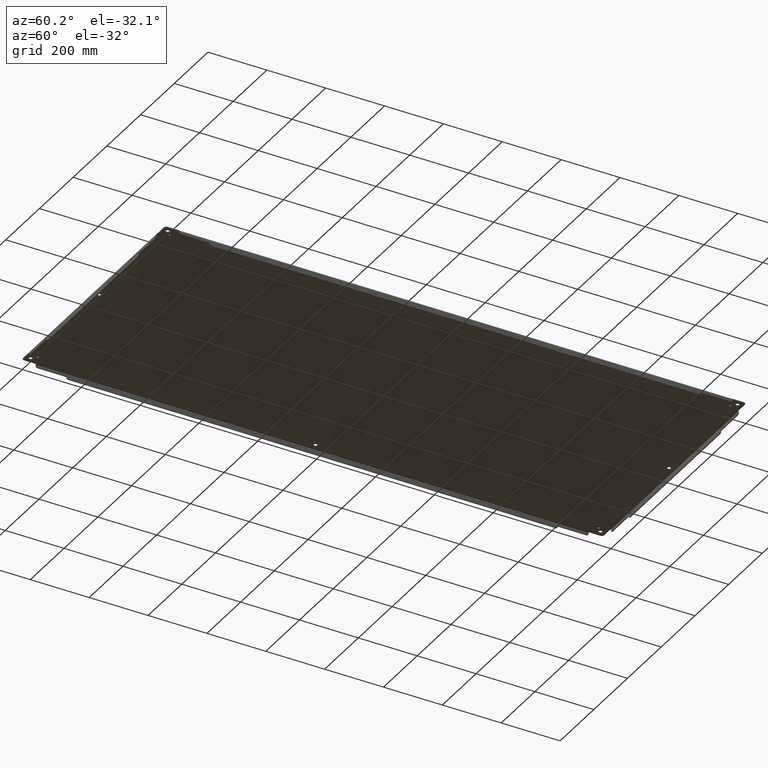
[diagram: clean part render]
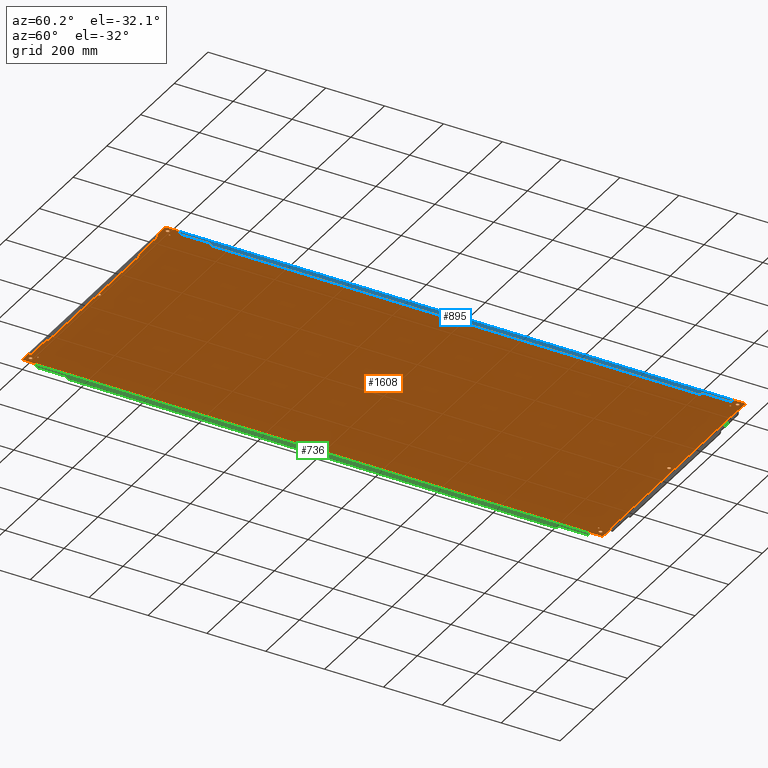
[diagram: same view with three faces highlighted in distinct colors, each labeled with its STEP entity id]
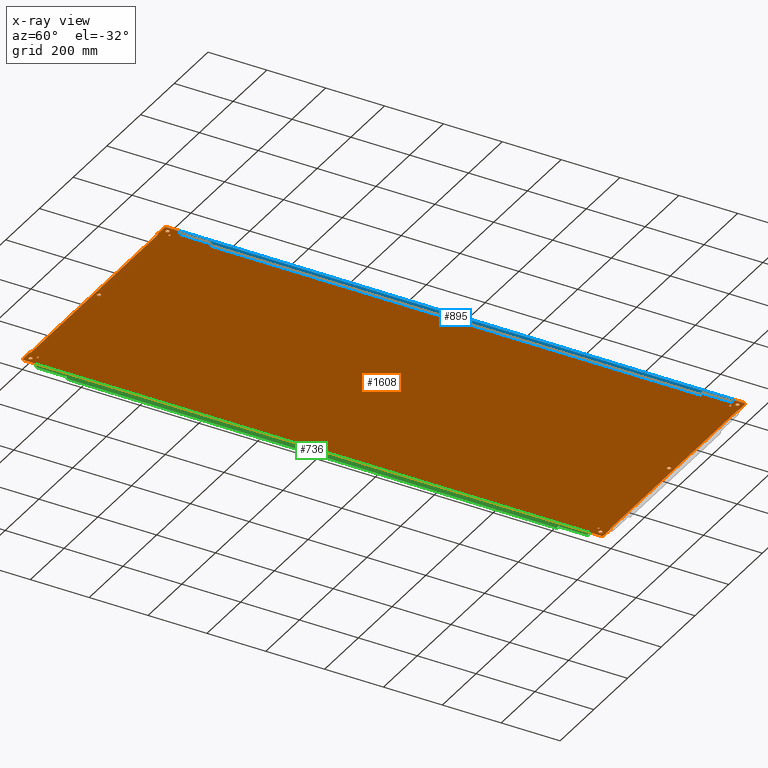
[diagram: x-ray of the same camera — body ghosted, the three highlighted faces saturated]
A machine part, auxiliary view with three faces highlighted in distinct colors.
The next image is the same camera in x-ray (body ghosted, the three faces saturated) — at least one of them is partly hidden behind the body in this view.
Their STEP definitions:

[orange] entity #1608 — the highlighted planar face has unit normal (0, 0, 1).
#8 = CARTESIAN_POINT ( 'NONE',  ( 16.60675000000000168, 36.98434999999999917, -0.1250000000000000000 ) ) ;
#25 = DIRECTION ( 'NONE',  ( 0.9848077530112269162, 0.1736481776724940196, 0.0000000000000000000 ) ) ;
#29 = EDGE_CURVE ( 'NONE', #1825, #1825, #2451, .T. ) ;
#33 = CARTESIAN_POINT ( 'NONE',  ( -15.38128156646000022, -37.50628156645999667, -0.1250000000000000000 ) ) ;
#36 = VECTOR ( 'NONE', #1763, 39.37007874015748143 ) ;
#38 = CARTESIAN_POINT ( 'NONE',  ( 14.85186739211355089, 38.73174999999984180, -0.1250000000000013323 ) ) ;
#43 = EDGE_CURVE ( 'NONE', #2154, #2154, #605, .T. ) ;
#45 = LINE ( 'NONE', #3654, #1771 ) ;
#64 = CARTESIAN_POINT ( 'NONE',  ( -15.38128156646000022, 37.50628156645999667, -0.1250000000000000000 ) ) ;
#70 = EDGE_LOOP ( 'NONE', ( #2906 ) ) ;
#73 = CIRCLE ( 'NONE', #3596, 0.2500000000000000000 ) ;
#84 = DIRECTION ( 'NONE',  ( 0.0000000000000000000, 0.0000000000000000000, 1.000000000000000000 ) ) ;
#85 = VERTEX_POINT ( 'NONE', #2453 ) ;
#93 = ORIENTED_EDGE ( 'NONE', *, *, #548, .T. ) ;
#108 = CARTESIAN_POINT ( 'NONE',  ( 16.00000000000000000, -38.12500000000000000, -0.1250000000000000000 ) ) ;
#134 = CIRCLE ( 'NONE', #1157, 0.2500000000000008882 ) ;
#161 = LINE ( 'NONE', #824, #1418 ) ;
#162 = ORIENTED_EDGE ( 'NONE', *, *, #2403, .F. ) ;
#166 = CARTESIAN_POINT ( 'NONE',  ( -15.74999999999999822, -38.12500000000000000, -0.1250000000000000000 ) ) ;
#169 = CARTESIAN_POINT ( 'NONE',  ( -16.00000000000000000, -38.12500000000000000, -0.1250000000000000000 ) ) ;
#188 = FACE_BOUND ( 'NONE', #1798, .T. ) ;
#200 = CARTESIAN_POINT ( 'NONE',  ( 0.0000000000000000000, 38.84375000000000000, -0.1250000000000000000 ) ) ;
#202 = ORIENTED_EDGE ( 'NONE', *, *, #3723, .F. ) ;
#204 = DIRECTION ( 'NONE',  ( 4.857895099745835558E-11, -1.000000000000000000, 8.820200600097185909E-13 ) ) ;
#234 = ORIENTED_EDGE ( 'NONE', *, *, #3295, .F. ) ;
#244 = EDGE_CURVE ( 'NONE', #2776, #2776, #134, .T. ) ;
#245 = AXIS2_PLACEMENT_3D ( 'NONE', #169, #3714, #4124 ) ;
#247 = ORIENTED_EDGE ( 'NONE', *, *, #2992, .F. ) ;
#248 = CARTESIAN_POINT ( 'NONE',  ( 0.0000000000000000000, -38.84375000000000000, -0.1250000000000000000 ) ) ;
#251 = FACE_BOUND ( 'NONE', #1756, .T. ) ;
#265 = VERTEX_POINT ( 'NONE', #3136 ) ;
#267 = EDGE_CURVE ( 'NONE', #2439, #3950, #501, .T. ) ;
#268 = FACE_BOUND ( 'NONE', #3937, .T. ) ;
#302 = EDGE_CURVE ( 'NONE', #646, #3529, #161, .T. ) ;
#319 = CARTESIAN_POINT ( 'NONE',  ( 0.0000000000000000000, 38.73174999999999812, -0.1250000000000000000 ) ) ;
#321 = LINE ( 'NONE', #1863, #1717 ) ;
#323 = ORIENTED_EDGE ( 'NONE', *, *, #1777, .F. ) ;
#325 = VECTOR ( 'NONE', #802, 39.37007874015748143 ) ;
#335 = VERTEX_POINT ( 'NONE', #3730 ) ;
#353 = DIRECTION ( 'NONE',  ( 0.0000000000000000000, 0.0000000000000000000, 1.000000000000000000 ) ) ;
#388 = VERTEX_POINT ( 'NONE', #1800 ) ;
#402 = DIRECTION ( 'NONE',  ( -1.000000000000000000, -0.0000000000000000000, 0.0000000000000000000 ) ) ;
#417 = LINE ( 'NONE', #1146, #3677 ) ;
#425 = LINE ( 'NONE', #1068, #3007 ) ;
#428 = ORIENTED_EDGE ( 'NONE', *, *, #543, .T. ) ;
#441 = AXIS2_PLACEMENT_3D ( 'NONE', #909, #2211, #1246 ) ;
#443 = DIRECTION ( 'NONE',  ( -4.857895099745835558E-11, 1.000000000000000000, 8.820200600097185909E-13 ) ) ;
#486 = DIRECTION ( 'NONE',  ( 0.0000000000000000000, -1.000000000000000000, -0.0000000000000000000 ) ) ;
#492 = CARTESIAN_POINT ( 'NONE',  ( -16.60674999999973522, 36.96874999999774047, -0.1249999999999945044 ) ) ;
#496 = VECTOR ( 'NONE', #3271, 39.37007874015748143 ) ;
#501 = LINE ( 'NONE', #1842, #325 ) ;
#505 = CARTESIAN_POINT ( 'NONE',  ( 16.25000000000000000, 38.12500000000000000, -0.1250000000000000000 ) ) ;
#518 = VERTEX_POINT ( 'NONE', #2187 ) ;
#534 = ORIENTED_EDGE ( 'NONE', *, *, #244, .T. ) ;
#541 = VERTEX_POINT ( 'NONE', #4135 ) ;
#543 = EDGE_CURVE ( 'NONE', #1484, #1484, #2669, .T. ) ;
#548 = EDGE_CURVE ( 'NONE', #1506, #1506, #3957, .T. ) ;
#549 = LINE ( 'NONE', #857, #2896 ) ;
#555 = DIRECTION ( 'NONE',  ( 0.0000000000000000000, 0.0000000000000000000, 1.000000000000000000 ) ) ;
#556 = CARTESIAN_POINT ( 'NONE',  ( 15.38128156646000022, 37.50628156645999667, -0.1250000000000000000 ) ) ;
#565 = CIRCLE ( 'NONE', #2141, 0.2500000000000008882 ) ;
#569 = LINE ( 'NONE', #1912, #3640 ) ;
#570 = EDGE_CURVE ( 'NONE', #1472, #1342, #321, .T. ) ;
#578 = DIRECTION ( 'NONE',  ( 0.0000000000000000000, 0.0000000000000000000, 1.000000000000000000 ) ) ;
#584 = ORIENTED_EDGE ( 'NONE', *, *, #2239, .T. ) ;
#586 = EDGE_CURVE ( 'NONE', #2797, #821, #1225, .T. ) ;
#593 = DIRECTION ( 'NONE',  ( 0.0000000000000000000, 0.0000000000000000000, 1.000000000000000000 ) ) ;
#595 = ORIENTED_EDGE ( 'NONE', *, *, #570, .F. ) ;
#600 = EDGE_CURVE ( 'NONE', #2767, #1600, #3848, .T. ) ;
#605 = CIRCLE ( 'NONE', #2780, 0.1404999999999992366 ) ;
#611 = ORIENTED_EDGE ( 'NONE', *, *, #3661, .F. ) ;
#621 = CARTESIAN_POINT ( 'NONE',  ( 14.87909862184000254, 38.84375000000000000, -0.1250000000000000000 ) ) ;
#641 = DIRECTION ( 'NONE',  ( 1.000000000000000000, 0.0000000000000000000, 0.0000000000000000000 ) ) ;
#646 = VERTEX_POINT ( 'NONE', #3619 ) ;
#690 = DIRECTION ( 'NONE',  ( 0.0000000000000000000, 0.0000000000000000000, 1.000000000000000000 ) ) ;
#713 = CARTESIAN_POINT ( 'NONE',  ( 16.60675000000011181, -36.98434999999999917, -0.1250000000000039968 ) ) ;
#731 = DIRECTION ( 'NONE',  ( 0.0000000000000000000, 0.0000000000000000000, 1.000000000000000000 ) ) ;
#753 = EDGE_CURVE ( 'NONE', #2910, #961, #565, .T. ) ;
#775 = CARTESIAN_POINT ( 'NONE',  ( -16.60675000000000168, -36.98434999999999917, -0.1250000000000000000 ) ) ;
#784 = VECTOR ( 'NONE', #2100, 39.37007874015748143 ) ;
#790 = AXIS2_PLACEMENT_3D ( 'NONE', #2493, #1810, #1444 ) ;
#792 = ORIENTED_EDGE ( 'NONE', *, *, #3378, .F. ) ;
#802 = DIRECTION ( 'NONE',  ( 1.000000000000000000, 0.0000000000000000000, -0.0000000000000000000 ) ) ;
#821 = VERTEX_POINT ( 'NONE', #1179 ) ;
#824 = CARTESIAN_POINT ( 'NONE',  ( -16.60674999999985957, 36.97686739211354734, -0.1250000000000013878 ) ) ;
#827 = VERTEX_POINT ( 'NONE', #3370 ) ;
#832 = CARTESIAN_POINT ( 'NONE',  ( 16.60674999999973522, -36.96874999999774047, -0.1249999999999945044 ) ) ;
#839 = EDGE_CURVE ( 'NONE', #2346, #4206, #2768, .T. ) ;
#842 = VECTOR ( 'NONE', #25, 39.37007874015748143 ) ;
#846 = AXIS2_PLACEMENT_3D ( 'NONE', #937, #555, #2203 ) ;
#857 = CARTESIAN_POINT ( 'NONE',  ( -14.85934999999999917, 38.73174999999999812, -0.1250000000000000000 ) ) ;
#864 = EDGE_CURVE ( 'NONE', #2712, #3299, #1112, .T. ) ;
#876 = DIRECTION ( 'NONE',  ( -0.0000000000000000000, 1.000000000000000000, 0.0000000000000000000 ) ) ;
#878 = DIRECTION ( 'NONE',  ( 1.000000000000000000, 0.0000000000000000000, 0.0000000000000000000 ) ) ;
#888 = CARTESIAN_POINT ( 'NONE',  ( 16.71875000000000000, 0.0000000000000000000, -0.1250000000000000000 ) ) ;
#898 = CARTESIAN_POINT ( 'NONE',  ( 16.00000000000000000, 38.12500000000000000, -0.1250000000000000000 ) ) ;
#905 = AXIS2_PLACEMENT_3D ( 'NONE', #33, #690, #3898 ) ;
#907 = EDGE_LOOP ( 'NONE', ( #1729 ) ) ;
#909 = CARTESIAN_POINT ( 'NONE',  ( 0.0000000000000000000, 0.0000000000000000000, -0.1250000000000000000 ) ) ;
#922 = ORIENTED_EDGE ( 'NONE', *, *, #43, .T. ) ;
#923 = AXIS2_PLACEMENT_3D ( 'NONE', #934, #353, #1596 ) ;
#931 = DIRECTION ( 'NONE',  ( -0.1736481776725027903, 0.9848077530112254729, 0.0000000000000000000 ) ) ;
#934 = CARTESIAN_POINT ( 'NONE',  ( 15.38128156646000022, -37.50628156645999667, -0.1250000000000000000 ) ) ;
#935 = ORIENTED_EDGE ( 'NONE', *, *, #3839, .F. ) ;
#937 = CARTESIAN_POINT ( 'NONE',  ( 16.46875000000000000, -38.59375000000000000, -0.1250000000000000000 ) ) ;
#958 = VERTEX_POINT ( 'NONE', #3132 ) ;
#961 = VERTEX_POINT ( 'NONE', #1256 ) ;
#1001 = ORIENTED_EDGE ( 'NONE', *, *, #3430, .F. ) ;
#1004 = CARTESIAN_POINT ( 'NONE',  ( 0.0000000000000000000, -38.84375000000000000, -0.1250000000000000000 ) ) ;
#1015 = EDGE_CURVE ( 'NONE', #3299, #2346, #1980, .T. ) ;
#1018 = LINE ( 'NONE', #3649, #1325 ) ;
#1020 = ORIENTED_EDGE ( 'NONE', *, *, #2089, .F. ) ;
#1024 = CARTESIAN_POINT ( 'NONE',  ( 16.60675000000000168, 0.0000000000000000000, -0.1250000000000000000 ) ) ;
#1036 = CIRCLE ( 'NONE', #905, 0.1404999999999992366 ) ;
#1039 = AXIS2_PLACEMENT_3D ( 'NONE', #3180, #2859, #2580 ) ;
#1040 = CARTESIAN_POINT ( 'NONE',  ( -16.71874999999906919, 37.00409862184107368, -0.1250000000000002498 ) ) ;
#1050 = CARTESIAN_POINT ( 'NONE',  ( 0.0000000000000000000, -38.73174999999999812, -0.1250000000000000000 ) ) ;
#1062 = CARTESIAN_POINT ( 'NONE',  ( 0.0000000000000000000, 38.84375000000000000, -0.1250000000000000000 ) ) ;
#1068 = CARTESIAN_POINT ( 'NONE',  ( -14.87909862184000254, -38.84375000000000000, -0.1250000000000000000 ) ) ;
#1112 = CIRCLE ( 'NONE', #846, 0.2500000000000008882 ) ;
#1146 = CARTESIAN_POINT ( 'NONE',  ( -16.71875000000000000, 37.00409862184000076, -0.1250000000000000000 ) ) ;
#1157 = AXIS2_PLACEMENT_3D ( 'NONE', #3966, #731, #3600 ) ;
#1158 = DIRECTION ( 'NONE',  ( -0.9848077530112269162, 0.1736481776724940196, 0.0000000000000000000 ) ) ;
#1166 = CARTESIAN_POINT ( 'NONE',  ( 16.25000000000000000, 0.0000000000000000000, -0.1250000000000000000 ) ) ;
#1167 = FACE_BOUND ( 'NONE', #3543, .T. ) ;
#1179 = CARTESIAN_POINT ( 'NONE',  ( 14.87909862183992438, -38.84374999999957367, -0.1250000000000000000 ) ) ;
#1196 = ORIENTED_EDGE ( 'NONE', *, *, #2455, .F. ) ;
#1225 = LINE ( 'NONE', #1886, #3008 ) ;
#1228 = DIRECTION ( 'NONE',  ( 1.000000000000000000, 0.0000000000000000000, 0.0000000000000000000 ) ) ;
#1230 = PLANE ( 'NONE',  #441 ) ;
#1246 = DIRECTION ( 'NONE',  ( 1.000000000000000000, 0.0000000000000000000, -0.0000000000000000000 ) ) ;
#1255 = EDGE_CURVE ( 'NONE', #388, #2767, #569, .T. ) ;
#1256 = CARTESIAN_POINT ( 'NONE',  ( 16.46875000000000000, 38.84375000000000000, -0.1250000000000000000 ) ) ;
#1262 = VECTOR ( 'NONE', #3800, 39.37007874015748143 ) ;
#1267 = EDGE_CURVE ( 'NONE', #518, #541, #549, .T. ) ;
#1273 = EDGE_CURVE ( 'NONE', #3379, #3172, #2850, .T. ) ;
#1294 = LINE ( 'NONE', #888, #2474 ) ;
#1311 = DIRECTION ( 'NONE',  ( -1.000000000000000000, -4.939312336051744496E-11, 8.798998194803716157E-13 ) ) ;
#1318 = LINE ( 'NONE', #1024, #4211 ) ;
#1319 = DIRECTION ( 'NONE',  ( -1.000000000000000000, -0.0000000000000000000, 0.0000000000000000000 ) ) ;
#1325 = VECTOR ( 'NONE', #443, 39.37007874015748143 ) ;
#1338 = EDGE_CURVE ( 'NONE', #2082, #1472, #1883, .T. ) ;
#1342 = VERTEX_POINT ( 'NONE', #1040 ) ;
#1353 = AXIS2_PLACEMENT_3D ( 'NONE', #108, #84, #2954 ) ;
#1355 = DIRECTION ( 'NONE',  ( 1.000000000000000000, 0.0000000000000000000, 0.0000000000000000000 ) ) ;
#1376 = AXIS2_PLACEMENT_3D ( 'NONE', #2267, #2898, #641 ) ;
#1397 = CARTESIAN_POINT ( 'NONE',  ( 14.85934999999999917, -38.73174999999999812, -0.1250000000000000000 ) ) ;
#1418 = VECTOR ( 'NONE', #204, 39.37007874015748143 ) ;
#1420 = CARTESIAN_POINT ( 'NONE',  ( -16.60675000000000168, 0.0000000000000000000, -0.1250000000000000000 ) ) ;
#1428 = CARTESIAN_POINT ( 'NONE',  ( -16.71874999999958078, -37.00409862183992260, -0.1250000000000000000 ) ) ;
#1438 = ORIENTED_EDGE ( 'NONE', *, *, #2463, .F. ) ;
#1444 = DIRECTION ( 'NONE',  ( 1.000000000000000000, 0.0000000000000000000, 0.0000000000000000000 ) ) ;
#1446 = EDGE_LOOP ( 'NONE', ( #2969 ) ) ;
#1454 = CARTESIAN_POINT ( 'NONE',  ( 16.46875000000000000, 38.59375000000000000, -0.1250000000000000000 ) ) ;
#1462 = VERTEX_POINT ( 'NONE', #3755 ) ;
#1472 = VERTEX_POINT ( 'NONE', #4055 ) ;
#1484 = VERTEX_POINT ( 'NONE', #3391 ) ;
#1486 = FACE_BOUND ( 'NONE', #1545, .T. ) ;
#1500 = ORIENTED_EDGE ( 'NONE', *, *, #1273, .F. ) ;
#1502 = VECTOR ( 'NONE', #1311, 39.37007874015748143 ) ;
#1506 = VERTEX_POINT ( 'NONE', #3711 ) ;
#1539 = VECTOR ( 'NONE', #2452, 39.37007874015748143 ) ;
#1545 = EDGE_LOOP ( 'NONE', ( #2264 ) ) ;
#1547 = DIRECTION ( 'NONE',  ( -0.0000000000000000000, -1.000000000000000000, 0.0000000000000000000 ) ) ;
#1596 = DIRECTION ( 'NONE',  ( 1.000000000000000000, 0.0000000000000000000, 0.0000000000000000000 ) ) ;
#1600 = VERTEX_POINT ( 'NONE', #2844 ) ;
#1608 = ADVANCED_FACE ( 'NONE', ( #188, #3183, #1167, #3166, #1486, #4159, #2173, #3439, #251, #3121, #4140, #268, #2471 ), #1230, .F. ) ;
#1616 = DIRECTION ( 'NONE',  ( -0.0000000000000000000, 1.000000000000000000, 0.0000000000000000000 ) ) ;
#1659 = DIRECTION ( 'NONE',  ( -0.0000000000000000000, 1.000000000000000000, 0.0000000000000000000 ) ) ;
#1666 = LINE ( 'NONE', #621, #1988 ) ;
#1668 = VECTOR ( 'NONE', #3636, 39.37007874015748143 ) ;
#1716 = VECTOR ( 'NONE', #1319, 39.37007874015748143 ) ;
#1717 = VECTOR ( 'NONE', #1547, 39.37007874015748143 ) ;
#1720 = CARTESIAN_POINT ( 'NONE',  ( -14.84375000000000000, 38.73174999999999812, -0.1249999999999959338 ) ) ;
#1729 = ORIENTED_EDGE ( 'NONE', *, *, #29, .T. ) ;
#1751 = ORIENTED_EDGE ( 'NONE', *, *, #3241, .F. ) ;
#1756 = EDGE_LOOP ( 'NONE', ( #93 ) ) ;
#1760 = VERTEX_POINT ( 'NONE', #166 ) ;
#1763 = DIRECTION ( 'NONE',  ( -1.000000000000000000, -0.0000000000000000000, 0.0000000000000000000 ) ) ;
#1771 = VECTOR ( 'NONE', #402, 39.37007874015748143 ) ;
#1777 = EDGE_CURVE ( 'NONE', #541, #2082, #1819, .T. ) ;
#1785 = CARTESIAN_POINT ( 'NONE',  ( 14.84374999999775291, 38.73174999999971391, -0.1249999999999945044 ) ) ;
#1798 = EDGE_LOOP ( 'NONE', ( #3071 ) ) ;
#1800 = CARTESIAN_POINT ( 'NONE',  ( 16.60675000000000168, 36.96874999999999289, -0.1249999999999959338 ) ) ;
#1804 = VERTEX_POINT ( 'NONE', #505 ) ;
#1810 = DIRECTION ( 'NONE',  ( 0.0000000000000000000, 0.0000000000000000000, 1.000000000000000000 ) ) ;
#1819 = LINE ( 'NONE', #200, #784 ) ;
#1825 = VERTEX_POINT ( 'NONE', #2755 ) ;
#1842 = CARTESIAN_POINT ( 'NONE',  ( 0.0000000000000000000, -38.73174999999999812, -0.1250000000000000000 ) ) ;
#1863 = CARTESIAN_POINT ( 'NONE',  ( -16.71875000000000000, 0.0000000000000000000, -0.1250000000000000000 ) ) ;
#1870 = CARTESIAN_POINT ( 'NONE',  ( -16.60675000000000523, -36.96875000000000000, -0.1249999999999959338 ) ) ;
#1880 = EDGE_CURVE ( 'NONE', #827, #827, #3900, .T. ) ;
#1883 = CIRCLE ( 'NONE', #3504, 0.2500000000000008882 ) ;
#1886 = CARTESIAN_POINT ( 'NONE',  ( 14.85934999999999917, -38.73174999999999812, -0.1250000000000000000 ) ) ;
#1904 = DIRECTION ( 'NONE',  ( 0.1736481776725027903, -0.9848077530112254729, 0.0000000000000000000 ) ) ;
#1906 = DIRECTION ( 'NONE',  ( -0.1736481776725027903, -0.9848077530112254729, 0.0000000000000000000 ) ) ;
#1912 = CARTESIAN_POINT ( 'NONE',  ( 16.60675000000000168, 0.0000000000000000000, -0.1250000000000000000 ) ) ;
#1972 = CARTESIAN_POINT ( 'NONE',  ( 16.46875000000000000, -38.84375000000000000, -0.1250000000000000000 ) ) ;
#1977 = CARTESIAN_POINT ( 'NONE',  ( 14.85934999999999917, 38.73175000000010471, -0.1250000000000039690 ) ) ;
#1980 = LINE ( 'NONE', #3634, #3885 ) ;
#1983 = CARTESIAN_POINT ( 'NONE',  ( 16.71875000000000000, -38.59375000000000000, -0.1250000000000000000 ) ) ;
#1988 = VECTOR ( 'NONE', #1906, 39.37007874015748143 ) ;
#2061 = EDGE_CURVE ( 'NONE', #2448, #2448, #73, .T. ) ;
#2069 = EDGE_CURVE ( 'NONE', #3906, #388, #1318, .T. ) ;
#2078 = DIRECTION ( 'NONE',  ( -0.9848077530112269162, -0.1736481776724940196, 0.0000000000000000000 ) ) ;
#2082 = VERTEX_POINT ( 'NONE', #3291 ) ;
#2085 = CIRCLE ( 'NONE', #245, 0.2500000000000008882 ) ;
#2089 = EDGE_CURVE ( 'NONE', #3669, #518, #45, .T. ) ;
#2100 = DIRECTION ( 'NONE',  ( -1.000000000000000000, -0.0000000000000000000, 0.0000000000000000000 ) ) ;
#2124 = ORIENTED_EDGE ( 'NONE', *, *, #3223, .F. ) ;
#2128 = ORIENTED_EDGE ( 'NONE', *, *, #2653, .F. ) ;
#2136 = VECTOR ( 'NONE', #2078, 39.37007874015748143 ) ;
#2141 = AXIS2_PLACEMENT_3D ( 'NONE', #1454, #2440, #2483 ) ;
#2154 = VERTEX_POINT ( 'NONE', #2470 ) ;
#2173 = FACE_BOUND ( 'NONE', #907, .T. ) ;
#2177 = CARTESIAN_POINT ( 'NONE',  ( -16.71875000000000000, 0.0000000000000000000, -0.1250000000000000000 ) ) ;
#2187 = CARTESIAN_POINT ( 'NONE',  ( -14.85934999999999917, 38.73174999999999812, -0.1250000000000000000 ) ) ;
#2194 = LINE ( 'NONE', #2781, #1539 ) ;
#2200 = EDGE_LOOP ( 'NONE', ( #3775, #2873, #2304, #611, #3940, #3856, #3913, #1751, #2226, #1001, #3810, #2128, #792, #3859, #935, #1500, #2988, #1196, #2486, #3724, #1438, #595, #2816, #323, #2858, #1020, #234, #162, #247, #202, #2721, #2124 ) ) ;
#2203 = DIRECTION ( 'NONE',  ( 1.000000000000000000, 0.0000000000000000000, 0.0000000000000000000 ) ) ;
#2211 = DIRECTION ( 'NONE',  ( 0.0000000000000000000, 0.0000000000000000000, 1.000000000000000000 ) ) ;
#2224 = DIRECTION ( 'NONE',  ( 1.000000000000000000, 0.0000000000000000000, 0.0000000000000000000 ) ) ;
#2226 = ORIENTED_EDGE ( 'NONE', *, *, #586, .F. ) ;
#2239 = EDGE_CURVE ( 'NONE', #3733, #3733, #3394, .T. ) ;
#2249 = AXIS2_PLACEMENT_3D ( 'NONE', #898, #593, #878 ) ;
#2261 = LINE ( 'NONE', #1004, #3209 ) ;
#2264 = ORIENTED_EDGE ( 'NONE', *, *, #2061, .T. ) ;
#2267 = CARTESIAN_POINT ( 'NONE',  ( 0.0000000000000000000, -38.12500000000000000, -0.1250000000000000000 ) ) ;
#2284 = EDGE_CURVE ( 'NONE', #1804, #1804, #4077, .T. ) ;
#2295 = EDGE_LOOP ( 'NONE', ( #584 ) ) ;
#2304 = ORIENTED_EDGE ( 'NONE', *, *, #2069, .F. ) ;
#2317 = CARTESIAN_POINT ( 'NONE',  ( -16.46875000000000000, 38.59375000000000000, -0.1250000000000000000 ) ) ;
#2346 = VERTEX_POINT ( 'NONE', #2871 ) ;
#2365 = DIRECTION ( 'NONE',  ( 0.0000000000000000000, 0.0000000000000000000, 1.000000000000000000 ) ) ;
#2369 = DIRECTION ( 'NONE',  ( 0.1736481776725027903, 0.9848077530112254729, 0.0000000000000000000 ) ) ;
#2384 = LINE ( 'NONE', #1062, #36 ) ;
#2403 = EDGE_CURVE ( 'NONE', #3551, #3808, #2952, .T. ) ;
#2439 = VERTEX_POINT ( 'NONE', #2779 ) ;
#2440 = DIRECTION ( 'NONE',  ( 0.0000000000000000000, 0.0000000000000000000, 1.000000000000000000 ) ) ;
#2448 = VERTEX_POINT ( 'NONE', #3119 ) ;
#2451 = CIRCLE ( 'NONE', #1353, 0.2500000000000008882 ) ;
#2452 = DIRECTION ( 'NONE',  ( 0.0000000000000000000, -1.000000000000000000, -0.0000000000000000000 ) ) ;
#2453 = CARTESIAN_POINT ( 'NONE',  ( -14.87909862184107546, -38.84374999999906919, -0.1250000000000005829 ) ) ;
#2455 = EDGE_CURVE ( 'NONE', #2644, #265, #3328, .T. ) ;
#2457 = CARTESIAN_POINT ( 'NONE',  ( -16.00000000000000000, 0.0000000000000000000, -0.1250000000000000000 ) ) ;
#2463 = EDGE_CURVE ( 'NONE', #1342, #646, #417, .T. ) ;
#2470 = CARTESIAN_POINT ( 'NONE',  ( -15.24078156646000082, 37.50628156645999667, -0.1250000000000000000 ) ) ;
#2471 = FACE_OUTER_BOUND ( 'NONE', #2200, .T. ) ;
#2474 = VECTOR ( 'NONE', #1659, 39.37007874015748143 ) ;
#2483 = DIRECTION ( 'NONE',  ( 1.000000000000000000, 0.0000000000000000000, 0.0000000000000000000 ) ) ;
#2486 = ORIENTED_EDGE ( 'NONE', *, *, #3817, .F. ) ;
#2493 = CARTESIAN_POINT ( 'NONE',  ( -16.46875000000000000, -38.59375000000000000, -0.1250000000000000000 ) ) ;
#2521 = EDGE_LOOP ( 'NONE', ( #428 ) ) ;
#2580 = DIRECTION ( 'NONE',  ( 1.000000000000000000, 0.0000000000000000000, 0.0000000000000000000 ) ) ;
#2619 = CIRCLE ( 'NONE', #790, 0.2500000000000008882 ) ;
#2644 = VERTEX_POINT ( 'NONE', #1870 ) ;
#2653 = EDGE_CURVE ( 'NONE', #958, #2439, #3167, .T. ) ;
#2669 = CIRCLE ( 'NONE', #1376, 0.2500000000000000000 ) ;
#2710 = EDGE_CURVE ( 'NONE', #2799, #2799, #1036, .T. ) ;
#2712 = VERTEX_POINT ( 'NONE', #1972 ) ;
#2721 = ORIENTED_EDGE ( 'NONE', *, *, #753, .F. ) ;
#2729 = EDGE_LOOP ( 'NONE', ( #3719 ) ) ;
#2755 = CARTESIAN_POINT ( 'NONE',  ( 16.25000000000000000, -38.12500000000000000, -0.1250000000000000000 ) ) ;
#2756 = CIRCLE ( 'NONE', #923, 0.1404999999999992366 ) ;
#2767 = VERTEX_POINT ( 'NONE', #8 ) ;
#2768 = LINE ( 'NONE', #4066, #2942 ) ;
#2776 = VERTEX_POINT ( 'NONE', #1166 ) ;
#2779 = CARTESIAN_POINT ( 'NONE',  ( -14.84374999999775291, -38.73174999999971391, -0.1249999999999945044 ) ) ;
#2780 = AXIS2_PLACEMENT_3D ( 'NONE', #64, #2365, #3650 ) ;
#2781 = CARTESIAN_POINT ( 'NONE',  ( -16.60675000000000168, 0.0000000000000000000, -0.1250000000000000000 ) ) ;
#2797 = VERTEX_POINT ( 'NONE', #1397 ) ;
#2799 = VERTEX_POINT ( 'NONE', #3099 ) ;
#2816 = ORIENTED_EDGE ( 'NONE', *, *, #1338, .F. ) ;
#2844 = CARTESIAN_POINT ( 'NONE',  ( 16.71874999999958078, 37.00409862183992260, -0.1250000000000000000 ) ) ;
#2850 = LINE ( 'NONE', #2177, #1262 ) ;
#2858 = ORIENTED_EDGE ( 'NONE', *, *, #1267, .F. ) ;
#2859 = DIRECTION ( 'NONE',  ( 0.0000000000000000000, 0.0000000000000000000, 1.000000000000000000 ) ) ;
#2867 = VECTOR ( 'NONE', #3239, 39.37007874015748143 ) ;
#2871 = CARTESIAN_POINT ( 'NONE',  ( 16.71874999999907274, -37.00409862184107368, -0.1250000000000001665 ) ) ;
#2873 = ORIENTED_EDGE ( 'NONE', *, *, #1255, .F. ) ;
#2896 = VECTOR ( 'NONE', #931, 39.37007874015748143 ) ;
#2898 = DIRECTION ( 'NONE',  ( 0.0000000000000000000, 0.0000000000000000000, 1.000000000000000000 ) ) ;
#2906 = ORIENTED_EDGE ( 'NONE', *, *, #3824, .T. ) ;
#2910 = VERTEX_POINT ( 'NONE', #4139 ) ;
#2936 = VECTOR ( 'NONE', #486, 39.37007874015748143 ) ;
#2942 = VECTOR ( 'NONE', #1158, 39.37007874015748143 ) ;
#2952 = LINE ( 'NONE', #38, #1502 ) ;
#2954 = DIRECTION ( 'NONE',  ( 1.000000000000000000, 0.0000000000000000000, 0.0000000000000000000 ) ) ;
#2969 = ORIENTED_EDGE ( 'NONE', *, *, #2710, .T. ) ;
#2988 = ORIENTED_EDGE ( 'NONE', *, *, #3100, .F. ) ;
#2990 = CARTESIAN_POINT ( 'NONE',  ( -16.46875000000000000, -38.84375000000000000, -0.1250000000000000000 ) ) ;
#2992 = EDGE_CURVE ( 'NONE', #335, #3551, #1666, .T. ) ;
#3007 = VECTOR ( 'NONE', #2369, 39.37007874015748143 ) ;
#3008 = VECTOR ( 'NONE', #1904, 39.37007874015748143 ) ;
#3051 = CARTESIAN_POINT ( 'NONE',  ( -16.71875000000000000, -38.59375000000000000, -0.1250000000000000000 ) ) ;
#3062 = ORIENTED_EDGE ( 'NONE', *, *, #2284, .T. ) ;
#3071 = ORIENTED_EDGE ( 'NONE', *, *, #1880, .T. ) ;
#3099 = CARTESIAN_POINT ( 'NONE',  ( -15.24078156646000082, -37.50628156645999667, -0.1250000000000000000 ) ) ;
#3100 = EDGE_CURVE ( 'NONE', #265, #3379, #3962, .T. ) ;
#3119 = CARTESIAN_POINT ( 'NONE',  ( 0.2500000000000000000, 38.12500000000000000, -0.1250000000000000000 ) ) ;
#3121 = FACE_BOUND ( 'NONE', #3577, .T. ) ;
#3132 = CARTESIAN_POINT ( 'NONE',  ( -14.85934999999999917, -38.73175000000010471, -0.1250000000000039690 ) ) ;
#3136 = CARTESIAN_POINT ( 'NONE',  ( -16.60675000000000168, -36.98434999999999917, -0.1250000000000000000 ) ) ;
#3166 = FACE_BOUND ( 'NONE', #2295, .T. ) ;
#3167 = LINE ( 'NONE', #3815, #2867 ) ;
#3172 = VERTEX_POINT ( 'NONE', #3051 ) ;
#3180 = CARTESIAN_POINT ( 'NONE',  ( -16.00000000000000000, 38.12500000000000000, -0.1250000000000000000 ) ) ;
#3183 = FACE_BOUND ( 'NONE', #1446, .T. ) ;
#3209 = VECTOR ( 'NONE', #1228, 39.37007874015748143 ) ;
#3223 = EDGE_CURVE ( 'NONE', #1600, #2910, #1294, .T. ) ;
#3239 = DIRECTION ( 'NONE',  ( 1.000000000000000000, 4.939312336051744496E-11, 8.798998194803716157E-13 ) ) ;
#3241 = EDGE_CURVE ( 'NONE', #821, #2712, #3888, .T. ) ;
#3251 = DIRECTION ( 'NONE',  ( 1.000000000000000000, 0.0000000000000000000, 0.0000000000000000000 ) ) ;
#3271 = DIRECTION ( 'NONE',  ( 1.000000000000000000, 0.0000000000000000000, 0.0000000000000000000 ) ) ;
#3291 = CARTESIAN_POINT ( 'NONE',  ( -16.46875000000000000, 38.84375000000000000, -0.1250000000000000000 ) ) ;
#3292 = LINE ( 'NONE', #1050, #1668 ) ;
#3295 = EDGE_CURVE ( 'NONE', #3808, #3669, #4138, .T. ) ;
#3299 = VERTEX_POINT ( 'NONE', #1983 ) ;
#3306 = EDGE_CURVE ( 'NONE', #4082, #85, #2261, .T. ) ;
#3319 = CARTESIAN_POINT ( 'NONE',  ( 16.60675000000000168, 36.98434999999999917, -0.1250000000000000000 ) ) ;
#3328 = LINE ( 'NONE', #1420, #2936 ) ;
#3333 = CARTESIAN_POINT ( 'NONE',  ( 0.0000000000000000000, 38.12500000000000000, -0.1250000000000000000 ) ) ;
#3370 = CARTESIAN_POINT ( 'NONE',  ( 15.52178156645999962, 37.50628156645999667, -0.1250000000000000000 ) ) ;
#3378 = EDGE_CURVE ( 'NONE', #85, #958, #425, .T. ) ;
#3379 = VERTEX_POINT ( 'NONE', #1428 ) ;
#3391 = CARTESIAN_POINT ( 'NONE',  ( 0.2500000000000000000, -38.12500000000000000, -0.1250000000000000000 ) ) ;
#3394 = CIRCLE ( 'NONE', #3528, 0.2500000000000008882 ) ;
#3413 = CARTESIAN_POINT ( 'NONE',  ( -15.74999999999999822, 0.0000000000000000000, -0.1250000000000000000 ) ) ;
#3430 = EDGE_CURVE ( 'NONE', #3950, #2797, #3292, .T. ) ;
#3439 = FACE_BOUND ( 'NONE', #70, .T. ) ;
#3504 = AXIS2_PLACEMENT_3D ( 'NONE', #2317, #4183, #1355 ) ;
#3528 = AXIS2_PLACEMENT_3D ( 'NONE', #2457, #3996, #3742 ) ;
#3529 = VERTEX_POINT ( 'NONE', #492 ) ;
#3543 = EDGE_LOOP ( 'NONE', ( #534 ) ) ;
#3551 = VERTEX_POINT ( 'NONE', #1977 ) ;
#3563 = EDGE_CURVE ( 'NONE', #1462, #1462, #2756, .T. ) ;
#3577 = EDGE_LOOP ( 'NONE', ( #3062 ) ) ;
#3596 = AXIS2_PLACEMENT_3D ( 'NONE', #3333, #3887, #3251 ) ;
#3600 = DIRECTION ( 'NONE',  ( 1.000000000000000000, 0.0000000000000000000, 0.0000000000000000000 ) ) ;
#3614 = DIRECTION ( 'NONE',  ( -0.0000000000000000000, 1.000000000000000000, 0.0000000000000000000 ) ) ;
#3619 = CARTESIAN_POINT ( 'NONE',  ( -16.60675000000011181, 36.98434999999999917, -0.1250000000000039968 ) ) ;
#3634 = CARTESIAN_POINT ( 'NONE',  ( 16.71875000000000000, 0.0000000000000000000, -0.1250000000000000000 ) ) ;
#3636 = DIRECTION ( 'NONE',  ( 1.000000000000000000, 0.0000000000000000000, -0.0000000000000000000 ) ) ;
#3640 = VECTOR ( 'NONE', #876, 39.37007874015748143 ) ;
#3649 = CARTESIAN_POINT ( 'NONE',  ( 16.60674999999985957, -36.97686739211354734, -0.1250000000000013878 ) ) ;
#3650 = DIRECTION ( 'NONE',  ( 1.000000000000000000, 0.0000000000000000000, 0.0000000000000000000 ) ) ;
#3654 = CARTESIAN_POINT ( 'NONE',  ( 0.0000000000000000000, 38.73174999999999812, -0.1250000000000000000 ) ) ;
#3661 = EDGE_CURVE ( 'NONE', #4206, #3906, #1018, .T. ) ;
#3669 = VERTEX_POINT ( 'NONE', #1720 ) ;
#3677 = VECTOR ( 'NONE', #3990, 39.37007874015748143 ) ;
#3711 = CARTESIAN_POINT ( 'NONE',  ( -15.74999999999999822, 38.12500000000000000, -0.1250000000000000000 ) ) ;
#3714 = DIRECTION ( 'NONE',  ( 0.0000000000000000000, 0.0000000000000000000, 1.000000000000000000 ) ) ;
#3719 = ORIENTED_EDGE ( 'NONE', *, *, #3563, .T. ) ;
#3723 = EDGE_CURVE ( 'NONE', #961, #335, #2384, .T. ) ;
#3724 = ORIENTED_EDGE ( 'NONE', *, *, #302, .F. ) ;
#3730 = CARTESIAN_POINT ( 'NONE',  ( 14.87909862184107546, 38.84374999999906919, -0.1250000000000005829 ) ) ;
#3733 = VERTEX_POINT ( 'NONE', #3413 ) ;
#3742 = DIRECTION ( 'NONE',  ( 1.000000000000000000, 0.0000000000000000000, 0.0000000000000000000 ) ) ;
#3755 = CARTESIAN_POINT ( 'NONE',  ( 15.52178156645999962, -37.50628156645999667, -0.1250000000000000000 ) ) ;
#3775 = ORIENTED_EDGE ( 'NONE', *, *, #600, .F. ) ;
#3800 = DIRECTION ( 'NONE',  ( -0.0000000000000000000, -1.000000000000000000, 0.0000000000000000000 ) ) ;
#3808 = VERTEX_POINT ( 'NONE', #1785 ) ;
#3810 = ORIENTED_EDGE ( 'NONE', *, *, #267, .F. ) ;
#3815 = CARTESIAN_POINT ( 'NONE',  ( -14.85186739211355089, -38.73174999999984180, -0.1250000000000013323 ) ) ;
#3817 = EDGE_CURVE ( 'NONE', #3529, #2644, #2194, .T. ) ;
#3824 = EDGE_CURVE ( 'NONE', #1760, #1760, #2085, .T. ) ;
#3839 = EDGE_CURVE ( 'NONE', #3172, #4082, #2619, .T. ) ;
#3848 = LINE ( 'NONE', #3319, #842 ) ;
#3856 = ORIENTED_EDGE ( 'NONE', *, *, #1015, .F. ) ;
#3859 = ORIENTED_EDGE ( 'NONE', *, *, #3306, .F. ) ;
#3874 = CARTESIAN_POINT ( 'NONE',  ( 14.84375000000000000, -38.73174999999999812, -0.1249999999999959338 ) ) ;
#3885 = VECTOR ( 'NONE', #1616, 39.37007874015748143 ) ;
#3887 = DIRECTION ( 'NONE',  ( 0.0000000000000000000, 0.0000000000000000000, 1.000000000000000000 ) ) ;
#3888 = LINE ( 'NONE', #248, #496 ) ;
#3898 = DIRECTION ( 'NONE',  ( 1.000000000000000000, 0.0000000000000000000, 0.0000000000000000000 ) ) ;
#3900 = CIRCLE ( 'NONE', #4112, 0.1404999999999992366 ) ;
#3906 = VERTEX_POINT ( 'NONE', #832 ) ;
#3913 = ORIENTED_EDGE ( 'NONE', *, *, #864, .F. ) ;
#3937 = EDGE_LOOP ( 'NONE', ( #922 ) ) ;
#3940 = ORIENTED_EDGE ( 'NONE', *, *, #839, .F. ) ;
#3950 = VERTEX_POINT ( 'NONE', #3874 ) ;
#3957 = CIRCLE ( 'NONE', #1039, 0.2500000000000008882 ) ;
#3962 = LINE ( 'NONE', #775, #2136 ) ;
#3966 = CARTESIAN_POINT ( 'NONE',  ( 16.00000000000000000, 0.0000000000000000000, -0.1250000000000000000 ) ) ;
#3990 = DIRECTION ( 'NONE',  ( 0.9848077530112269162, -0.1736481776724940196, 0.0000000000000000000 ) ) ;
#3996 = DIRECTION ( 'NONE',  ( 0.0000000000000000000, 0.0000000000000000000, 1.000000000000000000 ) ) ;
#4055 = CARTESIAN_POINT ( 'NONE',  ( -16.71875000000000000, 38.59375000000000000, -0.1250000000000000000 ) ) ;
#4066 = CARTESIAN_POINT ( 'NONE',  ( 16.71875000000000000, -37.00409862184000076, -0.1250000000000000000 ) ) ;
#4077 = CIRCLE ( 'NONE', #2249, 0.2500000000000008882 ) ;
#4082 = VERTEX_POINT ( 'NONE', #2990 ) ;
#4112 = AXIS2_PLACEMENT_3D ( 'NONE', #556, #578, #2224 ) ;
#4124 = DIRECTION ( 'NONE',  ( 1.000000000000000000, 0.0000000000000000000, 0.0000000000000000000 ) ) ;
#4135 = CARTESIAN_POINT ( 'NONE',  ( -14.87909862183992438, 38.84374999999957367, -0.1250000000000000000 ) ) ;
#4138 = LINE ( 'NONE', #319, #1716 ) ;
#4139 = CARTESIAN_POINT ( 'NONE',  ( 16.71875000000000000, 38.59375000000000000, -0.1250000000000000000 ) ) ;
#4140 = FACE_BOUND ( 'NONE', #2729, .T. ) ;
#4159 = FACE_BOUND ( 'NONE', #2521, .T. ) ;
#4183 = DIRECTION ( 'NONE',  ( 0.0000000000000000000, 0.0000000000000000000, 1.000000000000000000 ) ) ;
#4206 = VERTEX_POINT ( 'NONE', #713 ) ;
#4211 = VECTOR ( 'NONE', #3614, 39.37007874015748143 ) ;

[blue] entity #895 — the highlighted planar face has unit normal (1, 0, 0).
#40 = LINE ( 'NONE', #1336, #2849 ) ;
#54 = EDGE_CURVE ( 'NONE', #779, #2185, #40, .T. ) ;
#154 = VERTEX_POINT ( 'NONE', #1104 ) ;
#183 = CARTESIAN_POINT ( 'NONE',  ( 16.84374999999997868, -36.96874999999941025, -0.3125000000000000000 ) ) ;
#256 = VERTEX_POINT ( 'NONE', #410 ) ;
#264 = CARTESIAN_POINT ( 'NONE',  ( 16.84375000000000355, -32.59375000000000000, -0.8750000000000000000 ) ) ;
#404 = VERTEX_POINT ( 'NONE', #183 ) ;
#407 = VECTOR ( 'NONE', #3022, 39.37007874015748143 ) ;
#410 = CARTESIAN_POINT ( 'NONE',  ( 16.84375000000000000, 36.96875000000000000, -0.2369999999999999885 ) ) ;
#422 = EDGE_CURVE ( 'NONE', #2411, #3190, #1118, .T. ) ;
#431 = CARTESIAN_POINT ( 'NONE',  ( 16.84375000000000355, -36.71874999999942446, -0.5625000000000000000 ) ) ;
#452 = EDGE_CURVE ( 'NONE', #3883, #550, #3116, .T. ) ;
#476 = DIRECTION ( 'NONE',  ( 1.000000000000000000, 0.0000000000000000000, 0.0000000000000000000 ) ) ;
#495 = LINE ( 'NONE', #1795, #2672 ) ;
#532 = LINE ( 'NONE', #1109, #407 ) ;
#550 = VERTEX_POINT ( 'NONE', #264 ) ;
#682 = ORIENTED_EDGE ( 'NONE', *, *, #757, .T. ) ;
#757 = EDGE_CURVE ( 'NONE', #3273, #154, #3546, .T. ) ;
#779 = VERTEX_POINT ( 'NONE', #431 ) ;
#828 = EDGE_CURVE ( 'NONE', #3040, #256, #495, .T. ) ;
#894 = DIRECTION ( 'NONE',  ( 0.0000000000000000000, 0.0000000000000000000, -1.000000000000000000 ) ) ;
#895 = ADVANCED_FACE ( 'NONE', ( #1238 ), #3212, .T. ) ;
#955 = CARTESIAN_POINT ( 'NONE',  ( 16.84375000000000000, -38.84375000000000000, 0.0000000000000000000 ) ) ;
#970 = AXIS2_PLACEMENT_3D ( 'NONE', #955, #1202, #2500 ) ;
#984 = CIRCLE ( 'NONE', #3359, 0.2499999999999986955 ) ;
#1104 = CARTESIAN_POINT ( 'NONE',  ( 16.84375000000000355, 36.96875000000000000, -0.3125000000000000000 ) ) ;
#1109 = CARTESIAN_POINT ( 'NONE',  ( 16.84375000000000000, -38.84375000000000000, -0.5625000000000000000 ) ) ;
#1113 = CARTESIAN_POINT ( 'NONE',  ( 16.84375000000000355, 36.71875000000000000, -0.3125000000000000000 ) ) ;
#1118 = LINE ( 'NONE', #2423, #2572 ) ;
#1127 = LINE ( 'NONE', #4057, #3564 ) ;
#1202 = DIRECTION ( 'NONE',  ( 1.000000000000000000, 0.0000000000000000000, 0.0000000000000000000 ) ) ;
#1223 = ORIENTED_EDGE ( 'NONE', *, *, #54, .T. ) ;
#1238 = FACE_OUTER_BOUND ( 'NONE', #3492, .T. ) ;
#1248 = LINE ( 'NONE', #1306, #2144 ) ;
#1276 = AXIS2_PLACEMENT_3D ( 'NONE', #1277, #3809, #2245 ) ;
#1277 = CARTESIAN_POINT ( 'NONE',  ( 16.84375000000000355, -32.59375000000000000, -0.6250000000000000000 ) ) ;
#1306 = CARTESIAN_POINT ( 'NONE',  ( 16.84375000000000000, -32.84375000000000000, -0.7187500000000000000 ) ) ;
#1336 = CARTESIAN_POINT ( 'NONE',  ( 16.84375000000000000, -38.84375000000000000, -0.5625000000000000000 ) ) ;
#1529 = EDGE_CURVE ( 'NONE', #154, #256, #1846, .T. ) ;
#1548 = ORIENTED_EDGE ( 'NONE', *, *, #1529, .T. ) ;
#1569 = EDGE_CURVE ( 'NONE', #3129, #3190, #4182, .T. ) ;
#1674 = VECTOR ( 'NONE', #3101, 39.37007874015748143 ) ;
#1795 = CARTESIAN_POINT ( 'NONE',  ( 16.84375000000000355, 36.96875000000000000, -0.2369999999999999885 ) ) ;
#1828 = DIRECTION ( 'NONE',  ( 1.000000000000000000, 0.0000000000000000000, 0.0000000000000000000 ) ) ;
#1833 = ORIENTED_EDGE ( 'NONE', *, *, #4031, .T. ) ;
#1846 = LINE ( 'NONE', #2546, #1674 ) ;
#1862 = AXIS2_PLACEMENT_3D ( 'NONE', #1113, #476, #3701 ) ;
#1895 = ORIENTED_EDGE ( 'NONE', *, *, #1933, .T. ) ;
#1933 = EDGE_CURVE ( 'NONE', #404, #779, #984, .T. ) ;
#2144 = VECTOR ( 'NONE', #2548, 39.37007874015748143 ) ;
#2185 = VERTEX_POINT ( 'NONE', #3087 ) ;
#2216 = EDGE_CURVE ( 'NONE', #2411, #3273, #532, .T. ) ;
#2245 = DIRECTION ( 'NONE',  ( 0.0000000000000000000, 0.0000000000000000000, -1.000000000000000000 ) ) ;
#2355 = CARTESIAN_POINT ( 'NONE',  ( 16.84375000000000355, 32.59375000000000000, -0.8750000000000001110 ) ) ;
#2411 = VERTEX_POINT ( 'NONE', #3608 ) ;
#2423 = CARTESIAN_POINT ( 'NONE',  ( 16.84375000000000000, 32.84375000000000000, -0.7187500000000000000 ) ) ;
#2500 = DIRECTION ( 'NONE',  ( 0.0000000000000000000, 0.0000000000000000000, -1.000000000000000000 ) ) ;
#2503 = ORIENTED_EDGE ( 'NONE', *, *, #3860, .T. ) ;
#2539 = DIRECTION ( 'NONE',  ( 1.000000000000000000, -1.136960442324000035E-13, 0.0000000000000000000 ) ) ;
#2546 = CARTESIAN_POINT ( 'NONE',  ( 16.84375000000000000, 36.96875000000000000, 0.0000000000000000000 ) ) ;
#2548 = DIRECTION ( 'NONE',  ( -0.0000000000000000000, 0.0000000000000000000, -1.000000000000000000 ) ) ;
#2559 = DIRECTION ( 'NONE',  ( 1.136448765364339494E-13, 1.000000000000000000, 0.0000000000000000000 ) ) ;
#2572 = VECTOR ( 'NONE', #3553, 39.37007874015748143 ) ;
#2672 = VECTOR ( 'NONE', #3090, 39.37007874015748143 ) ;
#2709 = ORIENTED_EDGE ( 'NONE', *, *, #3796, .T. ) ;
#2745 = ORIENTED_EDGE ( 'NONE', *, *, #1569, .T. ) ;
#2760 = CARTESIAN_POINT ( 'NONE',  ( 16.84375000000000355, -32.84375000000000000, -0.6250000000000000000 ) ) ;
#2849 = VECTOR ( 'NONE', #3928, 39.37007874015748143 ) ;
#2883 = CARTESIAN_POINT ( 'NONE',  ( 16.84375000000000000, -36.96875000000000000, -0.2369999999999999885 ) ) ;
#2918 = ORIENTED_EDGE ( 'NONE', *, *, #452, .T. ) ;
#3022 = DIRECTION ( 'NONE',  ( -0.0000000000000000000, 1.000000000000000000, 0.0000000000000000000 ) ) ;
#3031 = ORIENTED_EDGE ( 'NONE', *, *, #828, .F. ) ;
#3040 = VERTEX_POINT ( 'NONE', #2883 ) ;
#3082 = CARTESIAN_POINT ( 'NONE',  ( 16.84375000000000000, -38.84375000000000000, -0.8750000000000000000 ) ) ;
#3087 = CARTESIAN_POINT ( 'NONE',  ( 16.84374999999999645, -32.84374999999999289, -0.5625000000000000000 ) ) ;
#3090 = DIRECTION ( 'NONE',  ( -0.0000000000000000000, 1.000000000000000000, -0.0000000000000000000 ) ) ;
#3101 = DIRECTION ( 'NONE',  ( -0.0000000000000000000, -0.0000000000000000000, 1.000000000000000000 ) ) ;
#3116 = CIRCLE ( 'NONE', #1276, 0.2500000000000000555 ) ;
#3124 = LINE ( 'NONE', #3082, #4169 ) ;
#3129 = VERTEX_POINT ( 'NONE', #2355 ) ;
#3144 = DIRECTION ( 'NONE',  ( -0.0000000000000000000, 1.000000000000000000, 0.0000000000000000000 ) ) ;
#3190 = VERTEX_POINT ( 'NONE', #3705 ) ;
#3212 = PLANE ( 'NONE',  #970 ) ;
#3267 = ORIENTED_EDGE ( 'NONE', *, *, #2216, .T. ) ;
#3273 = VERTEX_POINT ( 'NONE', #3912 ) ;
#3298 = AXIS2_PLACEMENT_3D ( 'NONE', #3779, #1828, #3813 ) ;
#3359 = AXIS2_PLACEMENT_3D ( 'NONE', #3788, #2539, #2559 ) ;
#3492 = EDGE_LOOP ( 'NONE', ( #2709, #1895, #1223, #1833, #2918, #2503, #2745, #3617, #3267, #682, #1548, #3031 ) ) ;
#3546 = CIRCLE ( 'NONE', #1862, 0.2500000000000000000 ) ;
#3553 = DIRECTION ( 'NONE',  ( -0.0000000000000000000, 0.0000000000000000000, -1.000000000000000000 ) ) ;
#3564 = VECTOR ( 'NONE', #894, 39.37007874015748143 ) ;
#3608 = CARTESIAN_POINT ( 'NONE',  ( 16.84374999999999645, 32.84375000000000711, -0.5625000000000000000 ) ) ;
#3617 = ORIENTED_EDGE ( 'NONE', *, *, #422, .F. ) ;
#3701 = DIRECTION ( 'NONE',  ( 0.0000000000000000000, 0.0000000000000000000, -1.000000000000000000 ) ) ;
#3705 = CARTESIAN_POINT ( 'NONE',  ( 16.84375000000000355, 32.84375000000000000, -0.6250000000000000000 ) ) ;
#3779 = CARTESIAN_POINT ( 'NONE',  ( 16.84375000000000355, 32.59375000000000000, -0.6250000000000000000 ) ) ;
#3788 = CARTESIAN_POINT ( 'NONE',  ( 16.84375000000000355, -36.71874999999882760, -0.3125000000000000000 ) ) ;
#3796 = EDGE_CURVE ( 'NONE', #3040, #404, #1127, .T. ) ;
#3809 = DIRECTION ( 'NONE',  ( 1.000000000000000000, 0.0000000000000000000, 0.0000000000000000000 ) ) ;
#3813 = DIRECTION ( 'NONE',  ( 0.0000000000000000000, 0.0000000000000000000, -1.000000000000000000 ) ) ;
#3860 = EDGE_CURVE ( 'NONE', #550, #3129, #3124, .T. ) ;
#3883 = VERTEX_POINT ( 'NONE', #2760 ) ;
#3912 = CARTESIAN_POINT ( 'NONE',  ( 16.84375000000000355, 36.71875000000000000, -0.5625000000000000000 ) ) ;
#3928 = DIRECTION ( 'NONE',  ( -0.0000000000000000000, 1.000000000000000000, 0.0000000000000000000 ) ) ;
#4031 = EDGE_CURVE ( 'NONE', #2185, #3883, #1248, .T. ) ;
#4057 = CARTESIAN_POINT ( 'NONE',  ( 16.84375000000000000, -36.96875000000000000, 0.0000000000000000000 ) ) ;
#4169 = VECTOR ( 'NONE', #3144, 39.37007874015748143 ) ;
#4182 = CIRCLE ( 'NONE', #3298, 0.2500000000000000555 ) ;

[green] entity #736 — the highlighted planar face has unit normal (-1, 0, 0).
#6 = ORIENTED_EDGE ( 'NONE', *, *, #2788, .F. ) ;
#35 = VECTOR ( 'NONE', #3702, 39.37007874015748143 ) ;
#118 = VERTEX_POINT ( 'NONE', #467 ) ;
#198 = VECTOR ( 'NONE', #4026, 39.37007874015748143 ) ;
#219 = CARTESIAN_POINT ( 'NONE',  ( -16.71875000000000000, 36.96874999999999289, -0.5560000000000000497 ) ) ;
#322 = EDGE_CURVE ( 'NONE', #2037, #3555, #535, .T. ) ;
#342 = LINE ( 'NONE', #2939, #3545 ) ;
#355 = ORIENTED_EDGE ( 'NONE', *, *, #1831, .F. ) ;
#406 = DIRECTION ( 'NONE',  ( -0.0000000000000000000, -0.0000000000000000000, -1.000000000000000000 ) ) ;
#414 = EDGE_CURVE ( 'NONE', #3555, #1610, #4071, .T. ) ;
#432 = EDGE_CURVE ( 'NONE', #118, #2037, #3866, .T. ) ;
#462 = ORIENTED_EDGE ( 'NONE', *, *, #3694, .F. ) ;
#467 = CARTESIAN_POINT ( 'NONE',  ( -16.71875000000000000, 32.59375000000000000, -0.8750000000000000000 ) ) ;
#535 = CIRCLE ( 'NONE', #1079, 0.2500000000000000000 ) ;
#561 = VERTEX_POINT ( 'NONE', #2207 ) ;
#566 = DIRECTION ( 'NONE',  ( -0.0000000000000000000, -1.000000000000000000, -0.0000000000000000000 ) ) ;
#686 = EDGE_CURVE ( 'NONE', #688, #561, #342, .T. ) ;
#688 = VERTEX_POINT ( 'NONE', #2052 ) ;
#695 = LINE ( 'NONE', #1677, #1879 ) ;
#718 = DIRECTION ( 'NONE',  ( -0.0000000000000000000, -1.000000000000000000, -0.0000000000000000000 ) ) ;
#736 = ADVANCED_FACE ( 'NONE', ( #4044 ), #3068, .F. ) ;
#737 = VECTOR ( 'NONE', #1584, 39.37007874015748143 ) ;
#928 = CARTESIAN_POINT ( 'NONE',  ( -16.71875000000000000, -36.96875000000000000, -0.2370000000000000162 ) ) ;
#972 = ORIENTED_EDGE ( 'NONE', *, *, #1540, .T. ) ;
#1066 = LINE ( 'NONE', #3377, #1382 ) ;
#1079 = AXIS2_PLACEMENT_3D ( 'NONE', #3073, #1186, #1524 ) ;
#1123 = EDGE_CURVE ( 'NONE', #2634, #2228, #1066, .T. ) ;
#1135 = EDGE_LOOP ( 'NONE', ( #972, #3804, #1921, #2016, #1227, #2012, #1878, #3594, #2480, #462, #6, #355 ) ) ;
#1171 = EDGE_CURVE ( 'NONE', #1337, #1610, #4037, .T. ) ;
#1186 = DIRECTION ( 'NONE',  ( -1.000000000000000000, 0.0000000000000000000, 0.0000000000000000000 ) ) ;
#1227 = ORIENTED_EDGE ( 'NONE', *, *, #414, .F. ) ;
#1328 = CARTESIAN_POINT ( 'NONE',  ( -16.71875000000000000, 36.96874999999999289, -0.2370000000000000162 ) ) ;
#1337 = VERTEX_POINT ( 'NONE', #2570 ) ;
#1372 = DIRECTION ( 'NONE',  ( -1.000000000000000000, 1.136960442324000035E-13, 0.0000000000000000000 ) ) ;
#1382 = VECTOR ( 'NONE', #3085, 39.37007874015748143 ) ;
#1401 = CARTESIAN_POINT ( 'NONE',  ( -16.71875000000000000, -36.71875000000000000, -0.3125000000000000000 ) ) ;
#1415 = VERTEX_POINT ( 'NONE', #3989 ) ;
#1524 = DIRECTION ( 'NONE',  ( 0.0000000000000000000, 0.0000000000000000000, 1.000000000000000000 ) ) ;
#1540 = EDGE_CURVE ( 'NONE', #1700, #2228, #2864, .T. ) ;
#1584 = DIRECTION ( 'NONE',  ( -0.0000000000000000000, -1.000000000000000000, -0.0000000000000000000 ) ) ;
#1610 = VERTEX_POINT ( 'NONE', #3500 ) ;
#1677 = CARTESIAN_POINT ( 'NONE',  ( -16.71875000000000000, 34.90625000000000000, -0.5625000000000000000 ) ) ;
#1700 = VERTEX_POINT ( 'NONE', #1328 ) ;
#1714 = AXIS2_PLACEMENT_3D ( 'NONE', #2106, #1372, #2039 ) ;
#1722 = AXIS2_PLACEMENT_3D ( 'NONE', #3428, #3361, #4021 ) ;
#1831 = EDGE_CURVE ( 'NONE', #1700, #3699, #3133, .T. ) ;
#1847 = CARTESIAN_POINT ( 'NONE',  ( -16.71875000000000000, -36.96875000000000000, -0.3125000000000000000 ) ) ;
#1878 = ORIENTED_EDGE ( 'NONE', *, *, #432, .F. ) ;
#1879 = VECTOR ( 'NONE', #718, 39.37007874015748143 ) ;
#1921 = ORIENTED_EDGE ( 'NONE', *, *, #3715, .F. ) ;
#1946 = CARTESIAN_POINT ( 'NONE',  ( -16.71875000000000000, 0.0000000000000000000, -0.8750000000000000000 ) ) ;
#1962 = CARTESIAN_POINT ( 'NONE',  ( -16.71875000000000000, -32.59375000000000000, -0.8750000000000001110 ) ) ;
#1998 = CARTESIAN_POINT ( 'NONE',  ( -16.71875000000000000, 36.96874999999939604, -0.3125000000000000000 ) ) ;
#2012 = ORIENTED_EDGE ( 'NONE', *, *, #322, .F. ) ;
#2016 = ORIENTED_EDGE ( 'NONE', *, *, #1171, .T. ) ;
#2037 = VERTEX_POINT ( 'NONE', #1962 ) ;
#2039 = DIRECTION ( 'NONE',  ( -1.136448765364339494E-13, -1.000000000000000000, 0.0000000000000000000 ) ) ;
#2052 = CARTESIAN_POINT ( 'NONE',  ( -16.71875000000000000, 32.84374999999999289, -0.5625000000000000000 ) ) ;
#2106 = CARTESIAN_POINT ( 'NONE',  ( -16.71875000000002487, 36.71874999999881339, -0.3125000000000000000 ) ) ;
#2207 = CARTESIAN_POINT ( 'NONE',  ( -16.71875000000000000, 32.84375000000000000, -0.6250000000000000000 ) ) ;
#2228 = VERTEX_POINT ( 'NONE', #4062 ) ;
#2430 = DIRECTION ( 'NONE',  ( -1.000000000000000000, 0.0000000000000000000, 0.0000000000000000000 ) ) ;
#2445 = EDGE_CURVE ( 'NONE', #561, #118, #4157, .T. ) ;
#2480 = ORIENTED_EDGE ( 'NONE', *, *, #686, .F. ) ;
#2570 = CARTESIAN_POINT ( 'NONE',  ( -16.71875000000000000, -36.71875000000000000, -0.5625000000000000000 ) ) ;
#2634 = VERTEX_POINT ( 'NONE', #1847 ) ;
#2730 = CARTESIAN_POINT ( 'NONE',  ( -16.71875000000000000, -32.84375000000000711, 0.0000000000000000000 ) ) ;
#2784 = CARTESIAN_POINT ( 'NONE',  ( -16.71875000000000000, -34.90625000000000000, -0.5625000000000000000 ) ) ;
#2788 = EDGE_CURVE ( 'NONE', #3699, #1415, #4022, .T. ) ;
#2801 = AXIS2_PLACEMENT_3D ( 'NONE', #4056, #2430, #3418 ) ;
#2864 = LINE ( 'NONE', #928, #2964 ) ;
#2939 = CARTESIAN_POINT ( 'NONE',  ( -16.71875000000000000, 32.84375000000000000, 0.0000000000000000000 ) ) ;
#2964 = VECTOR ( 'NONE', #566, 39.37007874015748143 ) ;
#3029 = CIRCLE ( 'NONE', #3363, 0.2500000000000000000 ) ;
#3068 = PLANE ( 'NONE',  #1722 ) ;
#3073 = CARTESIAN_POINT ( 'NONE',  ( -16.71875000000000000, -32.59375000000000000, -0.6250000000000000000 ) ) ;
#3085 = DIRECTION ( 'NONE',  ( -0.0000000000000000000, 0.0000000000000000000, 1.000000000000000000 ) ) ;
#3133 = LINE ( 'NONE', #219, #35 ) ;
#3246 = CARTESIAN_POINT ( 'NONE',  ( -16.71875000000000000, -32.84375000000000000, -0.6250000000000000000 ) ) ;
#3329 = DIRECTION ( 'NONE',  ( 0.0000000000000000000, 0.0000000000000000000, 1.000000000000000000 ) ) ;
#3361 = DIRECTION ( 'NONE',  ( -1.000000000000000000, 0.0000000000000000000, 0.0000000000000000000 ) ) ;
#3363 = AXIS2_PLACEMENT_3D ( 'NONE', #1401, #3374, #3329 ) ;
#3374 = DIRECTION ( 'NONE',  ( -1.000000000000000000, 0.0000000000000000000, 0.0000000000000000000 ) ) ;
#3377 = CARTESIAN_POINT ( 'NONE',  ( -16.71875000000000000, -36.96875000000000000, -0.5560000000000000497 ) ) ;
#3418 = DIRECTION ( 'NONE',  ( 0.0000000000000000000, 0.0000000000000000000, 1.000000000000000000 ) ) ;
#3428 = CARTESIAN_POINT ( 'NONE',  ( -16.71875000000000000, 38.84375000000000000, 0.0000000000000000000 ) ) ;
#3500 = CARTESIAN_POINT ( 'NONE',  ( -16.71875000000000000, -32.84374999999999289, -0.5625000000000000000 ) ) ;
#3545 = VECTOR ( 'NONE', #406, 39.37007874015748143 ) ;
#3555 = VERTEX_POINT ( 'NONE', #3246 ) ;
#3594 = ORIENTED_EDGE ( 'NONE', *, *, #2445, .F. ) ;
#3694 = EDGE_CURVE ( 'NONE', #1415, #688, #695, .T. ) ;
#3695 = DIRECTION ( 'NONE',  ( 0.0000000000000000000, 1.000000000000000000, 0.0000000000000000000 ) ) ;
#3699 = VERTEX_POINT ( 'NONE', #1998 ) ;
#3702 = DIRECTION ( 'NONE',  ( -0.0000000000000000000, 0.0000000000000000000, -1.000000000000000000 ) ) ;
#3715 = EDGE_CURVE ( 'NONE', #1337, #2634, #3029, .T. ) ;
#3758 = VECTOR ( 'NONE', #3695, 39.37007874015748143 ) ;
#3804 = ORIENTED_EDGE ( 'NONE', *, *, #1123, .F. ) ;
#3866 = LINE ( 'NONE', #1946, #737 ) ;
#3989 = CARTESIAN_POINT ( 'NONE',  ( -16.71875000000001066, 36.71874999999940314, -0.5625000000000000000 ) ) ;
#4021 = DIRECTION ( 'NONE',  ( 0.0000000000000000000, 0.0000000000000000000, 1.000000000000000000 ) ) ;
#4022 = CIRCLE ( 'NONE', #1714, 0.2499999999999986955 ) ;
#4026 = DIRECTION ( 'NONE',  ( 0.0000000000000000000, 0.0000000000000000000, 1.000000000000000000 ) ) ;
#4037 = LINE ( 'NONE', #2784, #3758 ) ;
#4044 = FACE_OUTER_BOUND ( 'NONE', #1135, .T. ) ;
#4056 = CARTESIAN_POINT ( 'NONE',  ( -16.71875000000000000, 32.59375000000000000, -0.6250000000000000000 ) ) ;
#4062 = CARTESIAN_POINT ( 'NONE',  ( -16.71875000000000000, -36.96875000000000000, -0.2369999999999999885 ) ) ;
#4071 = LINE ( 'NONE', #2730, #198 ) ;
#4157 = CIRCLE ( 'NONE', #2801, 0.2500000000000000000 ) ;